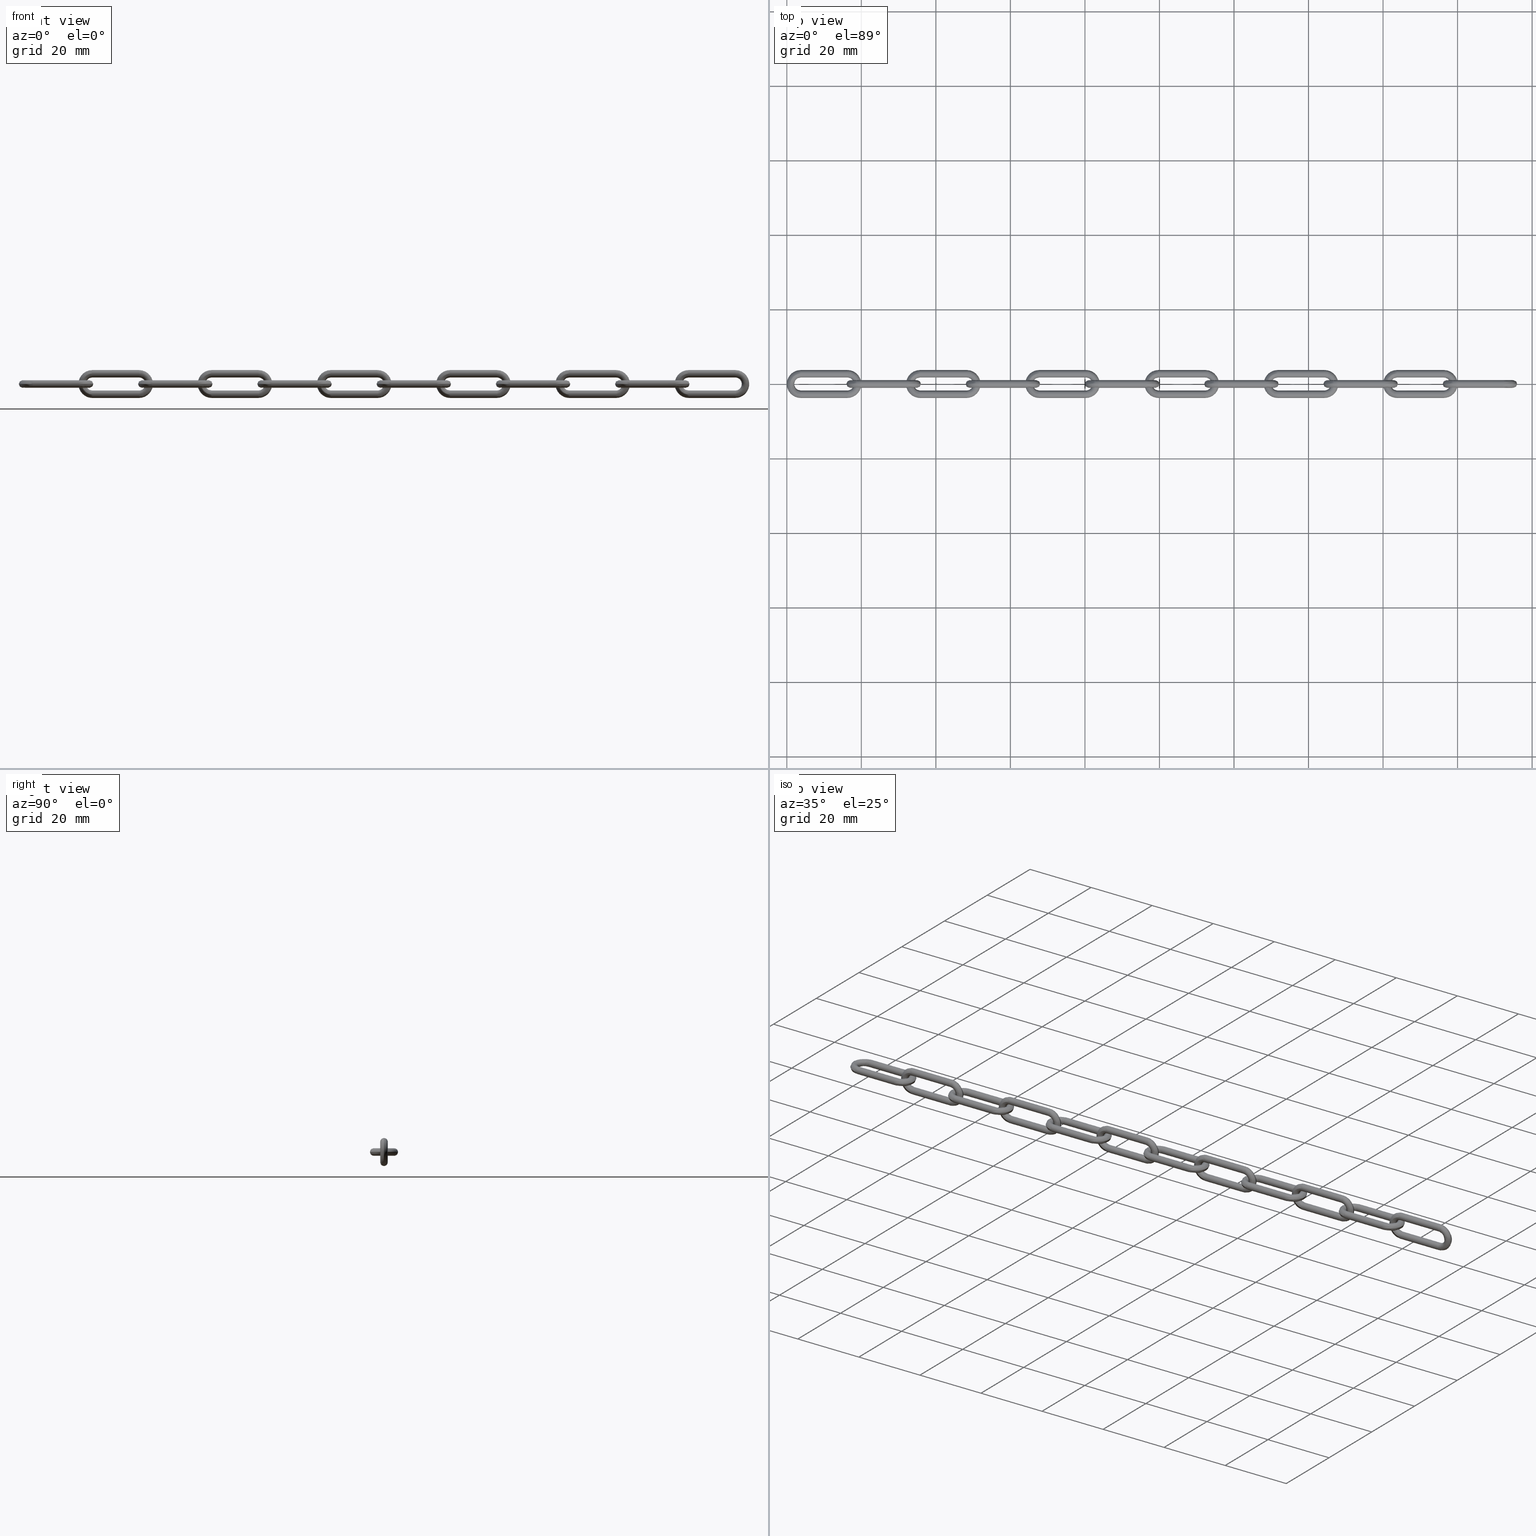
[diagram: canonical four-view strip — front | top / right | iso, engineering-drawing reading convention]
A machine part, canonical four-view strip (front | top / right | iso — engineering-drawing reading convention). The complete STEP part file that produces these views, byte-faithful:
ISO-10303-21;
HEADER;
/****************************************************************
 * Generated by software with PDE/Lib inside                    *
 * PDElib Version 4.4.1-0003, patched  Thursday August 19 11:58 *
 * International Technegroup Inc. (www.iti-oh.com)              *
 ****************************************************************/
FILE_DESCRIPTION((''),'2;1');
FILE_NAME('','2005-12-14T14:34:31',(''),(''),'','CADfix','');
FILE_SCHEMA(('AUTOMOTIVE_DESIGN'));
ENDSEC;
DATA;
#5=APPLICATION_CONTEXT('automotive design');
#6=APPLICATION_PROTOCOL_DEFINITION('Draft International Standard','automotive_design',1998,#5);
#7=PRODUCT_CONTEXT('None',#5,'mechanical');
#8=PRODUCT('chain','','None',(#7));
#9=PRODUCT_RELATED_PRODUCT_CATEGORY('part','description',(#8));
#10=PRODUCT_DEFINITION_FORMATION('None','None',#8);
#11=PRODUCT_DEFINITION_CONTEXT('part definition',#5,'design');
#12=PRODUCT_DEFINITION('None','None',#10,#11);
#18=(NAMED_UNIT(*)PLANE_ANGLE_UNIT()SI_UNIT($,.RADIAN.));
#19=DIMENSIONAL_EXPONENTS(0.0,0.0,0.0,0.0,0.0,0.0,0.0);
#20=PLANE_ANGLE_MEASURE_WITH_UNIT(PLANE_ANGLE_MEASURE(0.017453292500000),#18);
#24=(CONVERSION_BASED_UNIT('DEGREE',#20)NAMED_UNIT(#19)PLANE_ANGLE_UNIT());
#28=(NAMED_UNIT(*)SI_UNIT($,.STERADIAN.)SOLID_ANGLE_UNIT());
#32=(LENGTH_UNIT()NAMED_UNIT(*)SI_UNIT(.MILLI.,.METRE.));
#34=UNCERTAINTY_MEASURE_WITH_UNIT(LENGTH_MEASURE(0.001000000000000),#32,'DISTANCE_ACCURACY_VALUE','');
#36=(GEOMETRIC_REPRESENTATION_CONTEXT(3)GLOBAL_UNCERTAINTY_ASSIGNED_CONTEXT((#34))GLOBAL_UNIT_ASSIGNED_CONTEXT((#24,#28,#32))REPRESENTATION_CONTEXT('None','None'));
#37=AXIS2_PLACEMENT_3D('',#38,#39,#40);
#38=CARTESIAN_POINT('',(0.0,0.0,0.0));
#39=DIRECTION('',(0.0,0.0,1.0));
#40=DIRECTION('',(1.0,0.0,0.0));
#41=ADVANCED_BREP_SHAPE_REPRESENTATION('',(#37,#785,#825,#841,#857,#873,#889,#905,#921,#937,#953,#969,#985,#1001),#36);
#42=PRODUCT_DEFINITION_SHAPE('','',#12);
#43=SHAPE_DEFINITION_REPRESENTATION(#42,#41);
#44=CARTESIAN_POINT('',(16.562500000013380,-2.024625628987712,-0.688354575693753));
#45=CARTESIAN_POINT('',(16.562500000013387,-2.712980204681466,-1.413728946706041));
#46=CARTESIAN_POINT('',(16.562500000013380,-3.438354575693754,-0.725374371012288));
#47=CARTESIAN_POINT('',(16.562500000013387,-4.163728946706041,-0.037019795318534));
#48=CARTESIAN_POINT('',(16.562500000013380,-3.475374371012288,0.688354575693753));
#49=CARTESIAN_POINT('',(16.562500000013387,-2.787019795318535,1.413728946706041));
#50=CARTESIAN_POINT('',(16.562500000013380,-2.061645424306247,0.725374371012288));
#51=CARTESIAN_POINT('',(3.429687499962645,-2.024625628987712,-0.688354575693753));
#52=CARTESIAN_POINT('',(3.429687499962644,-2.712980204681466,-1.413728946706041));
#53=CARTESIAN_POINT('',(3.429687499962645,-3.438354575693754,-0.725374371012288));
#54=CARTESIAN_POINT('',(3.429687499962644,-4.163728946706041,-0.037019795318534));
#55=CARTESIAN_POINT('',(3.429687499962645,-3.475374371012288,0.688354575693753));
#56=CARTESIAN_POINT('',(3.429687499962644,-2.787019795318535,1.413728946706041));
#57=CARTESIAN_POINT('',(3.429687499962645,-2.061645424306247,0.725374371012288));
#65=(BOUNDED_SURFACE()B_SPLINE_SURFACE(2,1,((#44,#51),(#45,#52),(#46,#53),(#47,#54),(#48,#55),(#49,#56),(#50,#57)),.UNSPECIFIED.,.F.,.F.,.U.)B_SPLINE_SURFACE_WITH_KNOTS((3,2,2,3),(2,2),(1.570796326794897,3.141592653589793,4.712388980384690,6.283185307179586),(0.0,13.132812500050740),.UNSPECIFIED.)GEOMETRIC_REPRESENTATION_ITEM()RATIONAL_B_SPLINE_SURFACE(((1.0,1.0),(0.707106781186548,0.707106781186548),(1.0,1.0),(0.707106781186548,0.707106781186548),(1.0,1.0),(0.707106781186548,0.707106781186548),(1.0,1.0)))REPRESENTATION_ITEM('')SURFACE());
#66=CARTESIAN_POINT('',(16.250000000003890,-2.024625470343188,-0.688354408509139));
#67=VERTEX_POINT('',#66);
#68=CARTESIAN_POINT('',(16.250000000000000,-2.750000000000000,-1.0));
#69=VERTEX_POINT('',#68);
#70=CARTESIAN_POINT('',(16.250000000003890,-2.024625470343189,-0.688354408509139));
#71=CARTESIAN_POINT('',(16.249999999999996,-2.320365821023013,-1.0));
#72=CARTESIAN_POINT('',(16.250000000000000,-2.750000000000000,-1.0));
#80=(BOUNDED_CURVE()B_SPLINE_CURVE(2,(#70,#71,#72),.UNSPECIFIED.,.F.,.U.)B_SPLINE_CURVE_WITH_KNOTS((3,3),(0.371049457097000,0.500000000000000),.UNSPECIFIED.)CURVE()GEOMETRIC_REPRESENTATION_ITEM()RATIONAL_B_SPLINE_CURVE((0.853699666520713,0.848925041685592,1.0))REPRESENTATION_ITEM(''));
#81=EDGE_CURVE('',#67,#69,#80,.T.);
#82=ORIENTED_EDGE('',*,*,#81,.T.);
#83=CARTESIAN_POINT('',(16.250000000008139,-3.749684189282236,0.025130095485614));
#84=VERTEX_POINT('',#83);
#85=CARTESIAN_POINT('',(16.250000000000000,-2.750000000000000,-1.0));
#86=CARTESIAN_POINT('',(16.250000000000004,-3.749999999999999,-1.0));
#87=CARTESIAN_POINT('',(16.250000000000000,-3.750000000000000,0.0));
#88=CARTESIAN_POINT('',(16.250000000000004,-3.750000000000000,0.012567032165678));
#89=CARTESIAN_POINT('',(16.250000000008143,-3.749684189282236,0.025130095485614));
#97=(BOUNDED_CURVE()B_SPLINE_CURVE(2,(#85,#86,#87,#88,#89),.UNSPECIFIED.,.F.,.U.)B_SPLINE_CURVE_WITH_KNOTS((3,2,3),(0.500000000000000,0.750000000000000,0.754420108244993),.UNSPECIFIED.)CURVE()GEOMETRIC_REPRESENTATION_ITEM()RATIONAL_B_SPLINE_CURVE((1.0,0.707106781186548,1.0,0.994821521074481,0.989826157648124))REPRESENTATION_ITEM(''));
#98=EDGE_CURVE('',#69,#84,#97,.T.);
#99=ORIENTED_EDGE('',*,*,#98,.T.);
#100=CARTESIAN_POINT('',(16.250000000000000,-2.750000000000000,1.0));
#101=VERTEX_POINT('',#100);
#102=CARTESIAN_POINT('',(16.250000000008143,-3.749684189282236,0.025130095485614));
#103=CARTESIAN_POINT('',(16.250000000000000,-3.725177876098142,1.0));
#104=CARTESIAN_POINT('',(16.250000000000000,-2.750000000000000,1.0));
#112=(BOUNDED_CURVE()B_SPLINE_CURVE(2,(#102,#103,#104),.UNSPECIFIED.,.F.,.U.)B_SPLINE_CURVE_WITH_KNOTS((3,3),(0.754420108244992,1.0),.UNSPECIFIED.)CURVE()GEOMETRIC_REPRESENTATION_ITEM()RATIONAL_B_SPLINE_CURVE((0.989826157648125,0.712285260112066,1.0))REPRESENTATION_ITEM(''));
#113=EDGE_CURVE('',#84,#101,#112,.T.);
#114=ORIENTED_EDGE('',*,*,#113,.T.);
#115=CARTESIAN_POINT('',(16.250000000000000,-2.061645520639556,0.725374462429161));
#116=VERTEX_POINT('',#115);
#117=CARTESIAN_POINT('',(16.250000000000000,-2.750000000000000,1.0));
#118=CARTESIAN_POINT('',(16.249999999999996,-2.351040607969600,1.0));
#119=CARTESIAN_POINT('',(16.250000000000007,-2.061645520639556,0.725374462429161));
#127=(BOUNDED_CURVE()B_SPLINE_CURVE(2,(#117,#118,#119),.UNSPECIFIED.,.F.,.U.)B_SPLINE_CURVE_WITH_KNOTS((3,3),(0.0,0.121049486574772),.UNSPECIFIED.)CURVE()GEOMETRIC_REPRESENTATION_ITEM()RATIONAL_B_SPLINE_CURVE((1.0,0.858181704965597,0.853699664337786))REPRESENTATION_ITEM(''));
#128=EDGE_CURVE('',#101,#116,#127,.T.);
#129=ORIENTED_EDGE('',*,*,#128,.T.);
#130=CARTESIAN_POINT('',(3.750000000000000,-2.061645519479000,0.725374461327835));
#131=VERTEX_POINT('',#130);
#132=CARTESIAN_POINT('',(16.250000000000000,-2.061645520639556,0.725374462429161));
#133=CARTESIAN_POINT('',(3.750000000000000,-2.061645519479000,0.725374461327835));
#134=QUASI_UNIFORM_CURVE('',1,(#132,#133),.UNSPECIFIED.,.F.,.U.);
#135=EDGE_CURVE('',#116,#131,#134,.T.);
#136=ORIENTED_EDGE('',*,*,#135,.T.);
#137=CARTESIAN_POINT('',(3.749999999963884,-2.775130095693678,0.999684189277007));
#138=VERTEX_POINT('',#137);
#139=CARTESIAN_POINT('',(3.749999999963884,-2.775130095693679,0.999684189277007));
#140=CARTESIAN_POINT('',(3.750000000000000,-2.762567032373841,1.000000000000000));
#141=CARTESIAN_POINT('',(3.750000000000000,-2.750000000000000,1.0));
#142=CARTESIAN_POINT('',(3.750000000000000,-2.351040606115003,1.000000000000000));
#143=CARTESIAN_POINT('',(3.750000000000000,-2.061645519479000,0.725374461327835));
#151=(BOUNDED_CURVE()B_SPLINE_CURVE(2,(#139,#140,#141,#142,#143),.UNSPECIFIED.,.F.,.U.)B_SPLINE_CURVE_WITH_KNOTS((3,2,3),(0.245579891682171,0.250000000000000,0.371049487057679),.UNSPECIFIED.)CURVE()GEOMETRIC_REPRESENTATION_ITEM()RATIONAL_B_SPLINE_CURVE((0.989826157483492,0.994821520989148,1.0,0.858181704399836,0.853699664302025))REPRESENTATION_ITEM(''));
#152=EDGE_CURVE('',#138,#131,#151,.T.);
#153=ORIENTED_EDGE('',*,*,#152,.F.);
#154=CARTESIAN_POINT('',(3.750000000000000,-3.750000000000000,5.051501E-016));
#155=VERTEX_POINT('',#154);
#156=CARTESIAN_POINT('',(3.750000000000000,-3.750000000000000,5.051501E-016));
#157=CARTESIAN_POINT('',(3.750000000000000,-3.750000000000000,0.975177875692085));
#158=CARTESIAN_POINT('',(3.749999999963884,-2.775130095693679,0.999684189277007));
#166=(BOUNDED_CURVE()B_SPLINE_CURVE(2,(#156,#157,#158),.UNSPECIFIED.,.F.,.U.)B_SPLINE_CURVE_WITH_KNOTS((3,3),(0.0,0.245579891682171),.UNSPECIFIED.)CURVE()GEOMETRIC_REPRESENTATION_ITEM()RATIONAL_B_SPLINE_CURVE((1.0,0.712285260197400,0.989826157483492))REPRESENTATION_ITEM(''));
#167=EDGE_CURVE('',#155,#138,#166,.T.);
#168=ORIENTED_EDGE('',*,*,#167,.F.);
#169=CARTESIAN_POINT('',(3.749999999991843,-3.749684189282349,-0.025130095481124));
#170=VERTEX_POINT('',#169);
#171=CARTESIAN_POINT('',(3.749999999991843,-3.749684189282349,-0.025130095481124));
#172=CARTESIAN_POINT('',(3.750000000000000,-3.750000000000000,-0.012567032161184));
#173=CARTESIAN_POINT('',(3.750000000000000,-3.750000000000000,5.051501E-016));
#181=(BOUNDED_CURVE()B_SPLINE_CURVE(2,(#171,#172,#173),.UNSPECIFIED.,.F.,.U.)B_SPLINE_CURVE_WITH_KNOTS((3,3),(0.995579891756580,1.0),.UNSPECIFIED.)CURVE()GEOMETRIC_REPRESENTATION_ITEM()RATIONAL_B_SPLINE_CURVE((0.989826157651677,0.994821521076323,1.0))REPRESENTATION_ITEM(''));
#182=EDGE_CURVE('',#170,#155,#181,.T.);
#183=ORIENTED_EDGE('',*,*,#182,.F.);
#184=CARTESIAN_POINT('',(3.749999999999998,-2.024625538672165,-0.688354480521000));
#185=VERTEX_POINT('',#184);
#186=CARTESIAN_POINT('',(3.749999999999998,-2.024625538672165,-0.688354480521000));
#187=CARTESIAN_POINT('',(3.750000000000000,-2.320365938609645,-1.000000000000000));
#188=CARTESIAN_POINT('',(3.750000000000000,-2.750000000000000,-1.000000000000000));
#189=CARTESIAN_POINT('',(3.750000000000000,-3.725177876106901,-1.000000000000000));
#190=CARTESIAN_POINT('',(3.749999999991843,-3.749684189282349,-0.025130095481124));
#198=(BOUNDED_CURVE()B_SPLINE_CURVE(2,(#186,#187,#188,#189,#190),.UNSPECIFIED.,.F.,.U.)B_SPLINE_CURVE_WITH_KNOTS((3,2,3),(0.621049487057680,0.750000000000000,0.995579891756579),.UNSPECIFIED.)CURVE()GEOMETRIC_REPRESENTATION_ITEM()RATIONAL_B_SPLINE_CURVE((0.853699664302025,0.848925076786712,1.0,0.712285260110225,0.989826157651676))REPRESENTATION_ITEM(''));
#199=EDGE_CURVE('',#185,#170,#198,.T.);
#200=ORIENTED_EDGE('',*,*,#199,.F.);
#201=CARTESIAN_POINT('',(16.250000000003890,-2.024625470343188,-0.688354408509139));
#202=CARTESIAN_POINT('',(3.749999999999998,-2.024625538672165,-0.688354480521000));
#203=QUASI_UNIFORM_CURVE('',1,(#201,#202),.UNSPECIFIED.,.F.,.U.);
#204=EDGE_CURVE('',#67,#185,#203,.T.);
#205=ORIENTED_EDGE('',*,*,#204,.F.);
#206=EDGE_LOOP('',(#82,#99,#114,#129,#136,#153,#168,#183,#200,#205));
#207=FACE_OUTER_BOUND('',#206,.T.);
#208=ADVANCED_FACE('',(#207),#65,.T.);
#209=CARTESIAN_POINT('',(16.562500000013380,-2.061645424306247,0.725374371012288));
#210=CARTESIAN_POINT('',(16.562500000013387,-1.336271053293959,0.037019795318534));
#211=CARTESIAN_POINT('',(16.562500000013380,-2.024625628987712,-0.688354575693753));
#212=CARTESIAN_POINT('',(3.429687499962645,-2.061645424306247,0.725374371012288));
#213=CARTESIAN_POINT('',(3.429687499962644,-1.336271053293959,0.037019795318534));
#214=CARTESIAN_POINT('',(3.429687499962645,-2.024625628987712,-0.688354575693753));
#222=(BOUNDED_SURFACE()B_SPLINE_SURFACE(2,1,((#209,#212),(#210,#213),(#211,#214)),.UNSPECIFIED.,.F.,.F.,.U.)B_SPLINE_SURFACE_WITH_KNOTS((3,3),(2,2),(0.0,1.570796326794897),(0.0,13.132812500050740),.UNSPECIFIED.)GEOMETRIC_REPRESENTATION_ITEM()RATIONAL_B_SPLINE_SURFACE(((1.0,1.0),(0.707106781186548,0.707106781186548),(1.0,1.0)))REPRESENTATION_ITEM('')SURFACE());
#223=CARTESIAN_POINT('',(16.250000000012172,-1.750315810718006,-0.025130095495338));
#224=VERTEX_POINT('',#223);
#225=CARTESIAN_POINT('',(16.250000000012172,-1.750315810718007,-0.025130095495338));
#226=CARTESIAN_POINT('',(16.250000000007368,-1.759977443935625,-0.409473320617092));
#227=CARTESIAN_POINT('',(16.250000000003890,-2.024625470343189,-0.688354408509139));
#235=(BOUNDED_CURVE()B_SPLINE_CURVE(2,(#225,#226,#227),.UNSPECIFIED.,.F.,.U.)B_SPLINE_CURVE_WITH_KNOTS((3,3),(0.254420108248396,0.371049457097000),.UNSPECIFIED.)CURVE()GEOMETRIC_REPRESENTATION_ITEM()RATIONAL_B_SPLINE_CURVE((0.989826157640431,0.858018077075489,0.853699666520713))REPRESENTATION_ITEM(''));
#236=EDGE_CURVE('',#224,#67,#235,.T.);
#237=ORIENTED_EDGE('',*,*,#236,.T.);
#238=ORIENTED_EDGE('',*,*,#204,.T.);
#239=CARTESIAN_POINT('',(3.750000000000000,-1.750000000000000,5.051501E-016));
#240=VERTEX_POINT('',#239);
#241=CARTESIAN_POINT('',(3.750000000000000,-1.750000000000000,5.051501E-016));
#242=CARTESIAN_POINT('',(3.750000000000000,-1.750000000000000,-0.398959393885003));
#243=CARTESIAN_POINT('',(3.749999999999998,-2.024625538672165,-0.688354480521000));
#251=(BOUNDED_CURVE()B_SPLINE_CURVE(2,(#241,#242,#243),.UNSPECIFIED.,.F.,.U.)B_SPLINE_CURVE_WITH_KNOTS((3,3),(0.500000000000000,0.621049487057681),.UNSPECIFIED.)CURVE()GEOMETRIC_REPRESENTATION_ITEM()RATIONAL_B_SPLINE_CURVE((1.0,0.858181704399834,0.853699664302025))REPRESENTATION_ITEM(''));
#252=EDGE_CURVE('',#240,#185,#251,.T.);
#253=ORIENTED_EDGE('',*,*,#252,.F.);
#254=CARTESIAN_POINT('',(3.750000000000000,-2.061645519479000,0.725374461327835));
#255=CARTESIAN_POINT('',(3.750000000000000,-1.750000000000000,0.429634061390355));
#256=CARTESIAN_POINT('',(3.750000000000000,-1.750000000000000,5.051501E-016));
#264=(BOUNDED_CURVE()B_SPLINE_CURVE(2,(#254,#255,#256),.UNSPECIFIED.,.F.,.U.)B_SPLINE_CURVE_WITH_KNOTS((3,3),(0.371049487057680,0.500000000000000),.UNSPECIFIED.)CURVE()GEOMETRIC_REPRESENTATION_ITEM()RATIONAL_B_SPLINE_CURVE((0.853699664302025,0.848925076786712,1.0))REPRESENTATION_ITEM(''));
#265=EDGE_CURVE('',#131,#240,#264,.T.);
#266=ORIENTED_EDGE('',*,*,#265,.F.);
#267=ORIENTED_EDGE('',*,*,#135,.F.);
#268=CARTESIAN_POINT('',(16.250000000000007,-2.061645520639556,0.725374462429161));
#269=CARTESIAN_POINT('',(16.249999999999996,-1.750000000000000,0.429634063285620));
#270=CARTESIAN_POINT('',(16.250000000000000,-1.750000000000000,0.0));
#271=CARTESIAN_POINT('',(16.250000000000000,-1.750000000000000,-0.012567032175405));
#272=CARTESIAN_POINT('',(16.250000000012172,-1.750315810718007,-0.025130095495338));
#280=(BOUNDED_CURVE()B_SPLINE_CURVE(2,(#268,#269,#270,#271,#272),.UNSPECIFIED.,.F.,.U.)B_SPLINE_CURVE_WITH_KNOTS((3,2,3),(0.121049486574772,0.250000000000000,0.254420108248396),.UNSPECIFIED.)CURVE()GEOMETRIC_REPRESENTATION_ITEM()RATIONAL_B_SPLINE_CURVE((0.853699664337786,0.848925076220951,1.0,0.994821521070494,0.989826157640431))REPRESENTATION_ITEM(''));
#281=EDGE_CURVE('',#116,#224,#280,.T.);
#282=ORIENTED_EDGE('',*,*,#281,.T.);
#283=EDGE_LOOP('',(#237,#238,#253,#266,#267,#282));
#284=FACE_OUTER_BOUND('',#283,.T.);
#285=ADVANCED_FACE('',(#284),#222,.T.);
#286=CARTESIAN_POINT('',(16.562500000024418,3.524709102225163,-0.632317805323781));
#287=CARTESIAN_POINT('',(16.562500000024418,3.506612438298899,-0.654489646991923));
#288=CARTESIAN_POINT('',(16.562500000024411,3.487277336810123,-0.675590207615661));
#289=CARTESIAN_POINT('',(16.562500000024418,2.811687129194463,-1.412867544425785));
#290=CARTESIAN_POINT('',(16.562500000024411,2.074409792384339,-0.737277336810124));
#291=CARTESIAN_POINT('',(3.429687499846156,3.524709102225163,-0.632317805323781));
#292=CARTESIAN_POINT('',(3.429687499846155,3.506612438298899,-0.654489646991923));
#293=CARTESIAN_POINT('',(3.429687499846155,3.487277336810123,-0.675590207615661));
#294=CARTESIAN_POINT('',(3.429687499846156,2.811687129194463,-1.412867544425785));
#295=CARTESIAN_POINT('',(3.429687499846155,2.074409792384339,-0.737277336810124));
#303=(BOUNDED_SURFACE()B_SPLINE_SURFACE(2,1,((#286,#291),(#287,#292),(#288,#293),(#289,#294),(#290,#295)),.UNSPECIFIED.,.F.,.F.,.U.)B_SPLINE_SURFACE_WITH_KNOTS((3,2,3),(2,2),(4.649557127312894,4.712388980384690,6.283185307179586),(0.0,13.132812500178259),.UNSPECIFIED.)GEOMETRIC_REPRESENTATION_ITEM()RATIONAL_B_SPLINE_SURFACE(((0.977505800795127,0.977505800795127),(0.988284271247462,0.988284271247462),(1.0,1.0),(0.707106781186548,0.707106781186548),(1.0,1.0)))REPRESENTATION_ITEM('')SURFACE());
#304=CARTESIAN_POINT('',(3.750000000000000,2.074409832917328,-0.737277373951761));
#305=VERTEX_POINT('',#304);
#306=CARTESIAN_POINT('',(3.749999999999742,3.524709101645843,-0.632317806026028));
#307=VERTEX_POINT('',#306);
#308=CARTESIAN_POINT('',(3.750000000000000,2.074409832917328,-0.737277373951761));
#309=CARTESIAN_POINT('',(3.750000000000000,2.361121331437515,-0.999999999999999));
#310=CARTESIAN_POINT('',(3.750000000000000,2.750000000000000,-1.000000000000000));
#311=CARTESIAN_POINT('',(3.750000000000000,3.224606781758720,-0.999999999999999));
#312=CARTESIAN_POINT('',(3.749999999999742,3.524709101645844,-0.632317806026028));
#320=(BOUNDED_CURVE()B_SPLINE_CURVE(2,(#308,#309,#310,#311,#312),.UNSPECIFIED.,.F.,.U.)B_SPLINE_CURVE_WITH_KNOTS((3,2,3),(0.631584807514478,0.750000000000000,0.890231021493468),.UNSPECIFIED.)CURVE()GEOMETRIC_REPRESENTATION_ITEM()RATIONAL_B_SPLINE_CURVE((0.853959782886767,0.861267972466004,1.0,0.835709138949118,0.855727680035890))REPRESENTATION_ITEM(''));
#321=EDGE_CURVE('',#305,#307,#320,.T.);
#322=ORIENTED_EDGE('',*,*,#321,.T.);
#323=CARTESIAN_POINT('',(16.250000000000000,3.524709205957899,-0.632317678231484));
#324=VERTEX_POINT('',#323);
#325=CARTESIAN_POINT('',(16.250000000000000,3.524709205957899,-0.632317678231484));
#326=CARTESIAN_POINT('',(3.749999999999742,3.524709101645843,-0.632317806026028));
#327=QUASI_UNIFORM_CURVE('',1,(#325,#326),.UNSPECIFIED.,.F.,.U.);
#328=EDGE_CURVE('',#324,#307,#327,.T.);
#329=ORIENTED_EDGE('',*,*,#328,.F.);
#330=CARTESIAN_POINT('',(16.250000000000000,2.750000000000000,-1.0));
#331=VERTEX_POINT('',#330);
#332=CARTESIAN_POINT('',(16.249999999999996,3.524709205957900,-0.632317678231484));
#333=CARTESIAN_POINT('',(16.250000000000000,3.224606983886174,-1.000000000000000));
#334=CARTESIAN_POINT('',(16.250000000000000,2.750000000000000,-1.0));
#342=(BOUNDED_CURVE()B_SPLINE_CURVE(2,(#332,#333,#334),.UNSPECIFIED.,.F.,.U.)B_SPLINE_CURVE_WITH_KNOTS((3,3),(0.359768928596185,0.500000000000000),.UNSPECIFIED.)CURVE()GEOMETRIC_REPRESENTATION_ITEM()RATIONAL_B_SPLINE_CURVE((0.855727694285718,0.835709080475510,1.0))REPRESENTATION_ITEM(''));
#343=EDGE_CURVE('',#324,#331,#342,.T.);
#344=ORIENTED_EDGE('',*,*,#343,.T.);
#345=CARTESIAN_POINT('',(16.250000000005439,2.074409957361920,-0.737277487977934));
#346=VERTEX_POINT('',#345);
#347=CARTESIAN_POINT('',(16.250000000000000,2.750000000000000,-1.0));
#348=CARTESIAN_POINT('',(16.249999999999996,2.361121525752541,-1.000000000000000));
#349=CARTESIAN_POINT('',(16.250000000005432,2.074409957361920,-0.737277487977934));
#357=(BOUNDED_CURVE()B_SPLINE_CURVE(2,(#347,#348,#349),.UNSPECIFIED.,.F.,.U.)B_SPLINE_CURVE_WITH_KNOTS((3,3),(0.500000000000000,0.618415141524513),.UNSPECIFIED.)CURVE()GEOMETRIC_REPRESENTATION_ITEM()RATIONAL_B_SPLINE_CURVE((1.0,0.861268032170540,0.853959789177077))REPRESENTATION_ITEM(''));
#358=EDGE_CURVE('',#331,#346,#357,.T.);
#359=ORIENTED_EDGE('',*,*,#358,.T.);
#360=CARTESIAN_POINT('',(16.250000000005439,2.074409957361920,-0.737277487977934));
#361=CARTESIAN_POINT('',(3.750000000000000,2.074409832917328,-0.737277373951761));
#362=QUASI_UNIFORM_CURVE('',1,(#360,#361),.UNSPECIFIED.,.F.,.U.);
#363=EDGE_CURVE('',#346,#305,#362,.T.);
#364=ORIENTED_EDGE('',*,*,#363,.T.);
#365=EDGE_LOOP('',(#322,#329,#344,#359,#364));
#366=FACE_OUTER_BOUND('',#365,.T.);
#367=ADVANCED_FACE('',(#366),#303,.T.);
#368=CARTESIAN_POINT('',(16.562500000024411,2.074409792384339,-0.737277336810124));
#369=CARTESIAN_POINT('',(16.562500000024418,1.337132455574216,-0.061687129194463));
#370=CARTESIAN_POINT('',(16.562500000024411,2.012722663189877,0.675590207615660));
#371=CARTESIAN_POINT('',(16.562500000024418,2.688312870805538,1.412867544425783));
#372=CARTESIAN_POINT('',(16.562500000024411,3.425590207615661,0.737277336810123));
#373=CARTESIAN_POINT('',(16.562500000024421,4.121840596793184,0.099281400284993));
#374=CARTESIAN_POINT('',(16.562500000024418,3.524709102225163,-0.632317805323781));
#375=CARTESIAN_POINT('',(3.429687499846155,2.074409792384339,-0.737277336810124));
#376=CARTESIAN_POINT('',(3.429687499846156,1.337132455574216,-0.061687129194463));
#377=CARTESIAN_POINT('',(3.429687499846155,2.012722663189877,0.675590207615660));
#378=CARTESIAN_POINT('',(3.429687499846156,2.688312870805538,1.412867544425783));
#379=CARTESIAN_POINT('',(3.429687499846155,3.425590207615661,0.737277336810123));
#380=CARTESIAN_POINT('',(3.429687499846155,4.121840596793184,0.099281400284993));
#381=CARTESIAN_POINT('',(3.429687499846156,3.524709102225163,-0.632317805323781));
#389=(BOUNDED_SURFACE()B_SPLINE_SURFACE(2,1,((#368,#375),(#369,#376),(#370,#377),(#371,#378),(#372,#379),(#373,#380),(#374,#381)),.UNSPECIFIED.,.F.,.F.,.U.)B_SPLINE_SURFACE_WITH_KNOTS((3,2,2,3),(2,2),(0.0,1.570796326794897,3.141592653589793,4.649557127312894),(0.0,13.132812500178259),.UNSPECIFIED.)GEOMETRIC_REPRESENTATION_ITEM()RATIONAL_B_SPLINE_SURFACE(((1.0,1.0),(0.707106781186548,0.707106781186548),(1.0,1.0),(0.707106781186548,0.707106781186548),(1.0,1.0),(0.718822509939086,0.718822509939086),(0.977505800795127,0.977505800795127)))REPRESENTATION_ITEM('')SURFACE());
#390=CARTESIAN_POINT('',(3.749999999999320,3.749684189282265,-0.025130095484523));
#391=VERTEX_POINT('',#390);
#392=CARTESIAN_POINT('',(3.749999999999742,3.524709101645844,-0.632317806026028));
#393=CARTESIAN_POINT('',(3.749999999999558,3.741084807584531,-0.367216575499000));
#394=CARTESIAN_POINT('',(3.749999999999320,3.749684189282265,-0.025130095484523));
#402=(BOUNDED_CURVE()B_SPLINE_CURVE(2,(#392,#393,#394),.UNSPECIFIED.,.F.,.U.)B_SPLINE_CURVE_WITH_KNOTS((3,3),(0.890231021493469,0.995579891755389),.UNSPECIFIED.)CURVE()GEOMETRIC_REPRESENTATION_ITEM()RATIONAL_B_SPLINE_CURVE((0.855727680035890,0.870766654046939,0.989826157648986))REPRESENTATION_ITEM(''));
#403=EDGE_CURVE('',#307,#391,#402,.T.);
#404=ORIENTED_EDGE('',*,*,#403,.T.);
#405=CARTESIAN_POINT('',(3.750000000000000,3.750000000000000,5.051501E-016));
#406=VERTEX_POINT('',#405);
#407=CARTESIAN_POINT('',(3.749999999999320,3.749684189282265,-0.025130095484523));
#408=CARTESIAN_POINT('',(3.750000000000000,3.750000000000000,-0.012567032164585));
#409=CARTESIAN_POINT('',(3.750000000000000,3.750000000000000,5.051501E-016));
#417=(BOUNDED_CURVE()B_SPLINE_CURVE(2,(#407,#408,#409),.UNSPECIFIED.,.F.,.U.)B_SPLINE_CURVE_WITH_KNOTS((3,3),(0.995579891755390,1.0),.UNSPECIFIED.)CURVE()GEOMETRIC_REPRESENTATION_ITEM()RATIONAL_B_SPLINE_CURVE((0.989826157648988,0.994821521074929,1.0))REPRESENTATION_ITEM(''));
#418=EDGE_CURVE('',#391,#406,#417,.T.);
#419=ORIENTED_EDGE('',*,*,#418,.T.);
#420=CARTESIAN_POINT('',(3.749999999850504,2.775130096232384,0.999684189263465));
#421=VERTEX_POINT('',#420);
#422=CARTESIAN_POINT('',(3.750000000000000,3.750000000000000,5.051501E-016));
#423=CARTESIAN_POINT('',(3.750000000000000,3.750000000000000,0.975177874640757));
#424=CARTESIAN_POINT('',(3.749999999850505,2.775130096232384,0.999684189263465));
#432=(BOUNDED_CURVE()B_SPLINE_CURVE(2,(#422,#423,#424),.UNSPECIFIED.,.F.,.U.)B_SPLINE_CURVE_WITH_KNOTS((3,3),(0.0,0.245579891493589),.UNSPECIFIED.)CURVE()GEOMETRIC_REPRESENTATION_ITEM()RATIONAL_B_SPLINE_CURVE((1.0,0.712285260418338,0.989826157057241))REPRESENTATION_ITEM(''));
#433=EDGE_CURVE('',#406,#421,#432,.T.);
#434=ORIENTED_EDGE('',*,*,#433,.T.);
#435=CARTESIAN_POINT('',(3.750000000000000,1.750000000000000,5.051501E-016));
#436=VERTEX_POINT('',#435);
#437=CARTESIAN_POINT('',(3.749999999850505,2.775130096232384,0.999684189263465));
#438=CARTESIAN_POINT('',(3.750000000000000,2.762567032912799,1.000000000000001));
#439=CARTESIAN_POINT('',(3.750000000000000,2.750000000000000,1.0));
#440=CARTESIAN_POINT('',(3.749999999999999,1.750000000000000,1.000000000000000));
#441=CARTESIAN_POINT('',(3.750000000000000,1.750000000000000,5.051501E-016));
#449=(BOUNDED_CURVE()B_SPLINE_CURVE(2,(#437,#438,#439,#440,#441),.UNSPECIFIED.,.F.,.U.)B_SPLINE_CURVE_WITH_KNOTS((3,2,3),(0.245579891493589,0.250000000000000,0.500000000000000),.UNSPECIFIED.)CURVE()GEOMETRIC_REPRESENTATION_ITEM()RATIONAL_B_SPLINE_CURVE((0.989826157057241,0.994821520768210,1.0,0.707106781186548,1.0))REPRESENTATION_ITEM(''));
#450=EDGE_CURVE('',#421,#436,#449,.T.);
#451=ORIENTED_EDGE('',*,*,#450,.T.);
#452=CARTESIAN_POINT('',(3.750000000000000,1.750000000000000,5.051501E-016));
#453=CARTESIAN_POINT('',(3.750000000000000,1.750000000000000,-0.440010596512388));
#454=CARTESIAN_POINT('',(3.750000000000000,2.074409832917328,-0.737277373951761));
#462=(BOUNDED_CURVE()B_SPLINE_CURVE(2,(#452,#453,#454),.UNSPECIFIED.,.F.,.U.)B_SPLINE_CURVE_WITH_KNOTS((3,3),(0.500000000000000,0.631584807514478),.UNSPECIFIED.)CURVE()GEOMETRIC_REPRESENTATION_ITEM()RATIONAL_B_SPLINE_CURVE((1.0,0.845838808720544,0.853959782886767))REPRESENTATION_ITEM(''));
#463=EDGE_CURVE('',#436,#305,#462,.T.);
#464=ORIENTED_EDGE('',*,*,#463,.T.);
#465=ORIENTED_EDGE('',*,*,#363,.F.);
#466=CARTESIAN_POINT('',(16.250000000020169,1.750315810717889,-0.025130095490600));
#467=VERTEX_POINT('',#466);
#468=CARTESIAN_POINT('',(16.250000000005432,2.074409957361920,-0.737277487977934));
#469=CARTESIAN_POINT('',(16.250000000011376,1.760998442391274,-0.450089004528808));
#470=CARTESIAN_POINT('',(16.250000000020176,1.750315810717889,-0.025130095490600));
#478=(BOUNDED_CURVE()B_SPLINE_CURVE(2,(#468,#469,#470),.UNSPECIFIED.,.F.,.U.)B_SPLINE_CURVE_WITH_KNOTS((3,3),(0.618415141524513,0.745579891753263),.UNSPECIFIED.)CURVE()GEOMETRIC_REPRESENTATION_ITEM()RATIONAL_B_SPLINE_CURVE((0.853959789177077,0.846111545422859,0.989826157644180))REPRESENTATION_ITEM(''));
#479=EDGE_CURVE('',#346,#467,#478,.T.);
#480=ORIENTED_EDGE('',*,*,#479,.T.);
#481=CARTESIAN_POINT('',(16.250000000000000,2.750000000000000,1.000000000000000));
#482=VERTEX_POINT('',#481);
#483=CARTESIAN_POINT('',(16.250000000020172,1.750315810717889,-0.025130095490600));
#484=CARTESIAN_POINT('',(16.250000000000004,1.750000000000000,-0.012567032170664));
#485=CARTESIAN_POINT('',(16.250000000000000,1.750000000000000,-5.051501E-016));
#486=CARTESIAN_POINT('',(16.250000000000004,1.750000000000000,1.000000000000000));
#487=CARTESIAN_POINT('',(16.250000000000000,2.750000000000000,1.000000000000000));
#495=(BOUNDED_CURVE()B_SPLINE_CURVE(2,(#483,#484,#485,#486,#487),.UNSPECIFIED.,.F.,.U.)B_SPLINE_CURVE_WITH_KNOTS((3,2,3),(0.745579891753263,0.750000000000000,1.0),.UNSPECIFIED.)CURVE()GEOMETRIC_REPRESENTATION_ITEM()RATIONAL_B_SPLINE_CURVE((0.989826157644180,0.994821521072437,1.0,0.707106781186548,1.0))REPRESENTATION_ITEM(''));
#496=EDGE_CURVE('',#467,#482,#495,.T.);
#497=ORIENTED_EDGE('',*,*,#496,.T.);
#498=CARTESIAN_POINT('',(16.250000000000679,3.749684189282289,0.025130095483558));
#499=VERTEX_POINT('',#498);
#500=CARTESIAN_POINT('',(16.250000000000000,2.750000000000000,1.000000000000000));
#501=CARTESIAN_POINT('',(16.250000000000004,3.725177876102156,1.000000000000000));
#502=CARTESIAN_POINT('',(16.250000000000679,3.749684189282289,0.025130095483558));
#510=(BOUNDED_CURVE()B_SPLINE_CURVE(2,(#500,#501,#502),.UNSPECIFIED.,.F.,.U.)B_SPLINE_CURVE_WITH_KNOTS((3,3),(0.0,0.245579891755728),.UNSPECIFIED.)CURVE()GEOMETRIC_REPRESENTATION_ITEM()RATIONAL_B_SPLINE_CURVE((1.0,0.712285260111223,0.989826157649752))REPRESENTATION_ITEM(''));
#511=EDGE_CURVE('',#482,#499,#510,.T.);
#512=ORIENTED_EDGE('',*,*,#511,.T.);
#513=CARTESIAN_POINT('',(16.250000000000679,3.749684189282289,0.025130095483558));
#514=CARTESIAN_POINT('',(16.249999999999996,3.750000000000000,0.012567032163618));
#515=CARTESIAN_POINT('',(16.250000000000000,3.750000000000000,-5.051501E-016));
#516=CARTESIAN_POINT('',(16.249999999999996,3.750000000000000,-0.356293589990472));
#517=CARTESIAN_POINT('',(16.249999999999996,3.524709205957900,-0.632317678231484));
#525=(BOUNDED_CURVE()B_SPLINE_CURVE(2,(#513,#514,#515,#516,#517),.UNSPECIFIED.,.F.,.U.)B_SPLINE_CURVE_WITH_KNOTS((3,2,3),(0.245579891755728,0.250000000000000,0.359768928596185),.UNSPECIFIED.)CURVE()GEOMETRIC_REPRESENTATION_ITEM()RATIONAL_B_SPLINE_CURVE((0.989826157649752,0.994821521075325,1.0,0.871397700711037,0.855727694285718))REPRESENTATION_ITEM(''));
#526=EDGE_CURVE('',#499,#324,#525,.T.);
#527=ORIENTED_EDGE('',*,*,#526,.T.);
#528=ORIENTED_EDGE('',*,*,#328,.T.);
#529=EDGE_LOOP('',(#404,#419,#434,#451,#464,#465,#480,#497,#512,#527,#528));
#530=FACE_OUTER_BOUND('',#529,.T.);
#531=ADVANCED_FACE('',(#530),#389,.T.);
#532=CARTESIAN_POINT('',(16.001866426021223,1.732638209987701,-0.025130095443337));
#533=CARTESIAN_POINT('',(17.987676827804549,2.017028932412214,-0.025130095443337));
#534=CARTESIAN_POINT('',(18.000281260981112,0.010997486223929,-0.025130095443337));
#535=CARTESIAN_POINT('',(18.013037560621378,-2.019203940284724,-0.025130095443337));
#536=CARTESIAN_POINT('',(16.003096927308917,-1.732813985960569,-0.025130095443337));
#537=CARTESIAN_POINT('',(16.005428994763744,1.707761920052380,0.974554093839962));
#538=CARTESIAN_POINT('',(17.962728196097604,1.988069513047352,0.974554093839962));
#539=CARTESIAN_POINT('',(17.975151661584334,0.010839590216390,0.974554093839962));
#540=CARTESIAN_POINT('',(17.987724813117563,-1.990213293323625,0.974554093839962));
#541=CARTESIAN_POINT('',(16.006641829174047,-1.707935172328126,0.974554093839962));
#542=CARTESIAN_POINT('',(15.863708735357891,2.697349635405064,0.999684189283300));
#543=CARTESIAN_POINT('',(18.955193693012060,3.140085578213220,0.999684189283300));
#544=CARTESIAN_POINT('',(18.974816117957609,0.017120749897750,0.999684189283300));
#545=CARTESIAN_POINT('',(18.994674966726755,-3.143471603442322,0.999684189283300));
#546=CARTESIAN_POINT('',(15.865624364472257,-2.697623281255421,0.999684189283300));
#547=CARTESIAN_POINT('',(15.721988475952028,3.686937350757748,1.024814284726638));
#548=CARTESIAN_POINT('',(19.947659189926505,4.292101643379090,1.024814284726638));
#549=CARTESIAN_POINT('',(19.974480574330880,0.023401909579110,1.024814284726638));
#550=CARTESIAN_POINT('',(20.001625120335955,-4.296729913561023,1.024814284726638));
#551=CARTESIAN_POINT('',(15.724606899770452,-3.687311390182716,1.024814284726638));
#552=CARTESIAN_POINT('',(15.718425907209522,3.711813640693069,0.025130095443338));
#553=CARTESIAN_POINT('',(19.972607821633439,4.321061062743953,0.025130095443338));
#554=CARTESIAN_POINT('',(19.999610173727650,0.023559805586649,0.025130095443338));
#555=CARTESIAN_POINT('',(20.026937867839777,-4.325720560522122,0.025130095443338));
#556=CARTESIAN_POINT('',(15.721061997905329,-3.712190203815159,0.025130095443338));
#564=(BOUNDED_SURFACE()B_SPLINE_SURFACE(2,2,((#532,#537,#542,#547,#552),(#533,#538,#543,#548,#553),(#534,#539,#544,#549,#554),(#535,#540,#545,#550,#555),(#536,#541,#546,#551,#556)),.UNSPECIFIED.,.F.,.F.,.U.)B_SPLINE_SURFACE_WITH_KNOTS((3,2,3),(3,2,3),(0.0,6.818902798998225,13.691338380777520),(0.0,1.656854249492380,3.313708498984760),.UNSPECIFIED.)GEOMETRIC_REPRESENTATION_ITEM()RATIONAL_B_SPLINE_SURFACE(((0.990444899367860,0.700350304734641,0.990444899367860,0.700350304734641,0.990444899367860),(0.654292547854581,0.462654697467798,0.654292547854581,0.462654697467798,0.654292547854581),(1.0,0.707106781186548,1.0,0.707106781186548,1.0),(0.651578521494766,0.460735591024454,0.651578521494766,0.460735591024454,0.651578521494766),(0.995764949495310,0.704112148256014,0.995764949495310,0.704112148256014,0.995764949495310)))REPRESENTATION_ITEM('')SURFACE());
#565=ORIENTED_EDGE('',*,*,#281,.F.);
#566=ORIENTED_EDGE('',*,*,#128,.F.);
#567=ORIENTED_EDGE('',*,*,#113,.F.);
#568=CARTESIAN_POINT('',(16.250000000000682,3.749684189282289,0.025130095483558));
#569=CARTESIAN_POINT('',(19.976197935653772,3.749684189281946,0.025130095443338));
#570=CARTESIAN_POINT('',(19.999610173727650,0.023559805586649,0.025130095443338));
#571=CARTESIAN_POINT('',(20.023318476946105,-3.749684189266918,0.025130095443338));
#572=CARTESIAN_POINT('',(16.250000000008139,-3.749684189282236,0.025130095485614));
#580=(BOUNDED_CURVE()B_SPLINE_CURVE(2,(#568,#569,#570,#571,#572),.UNSPECIFIED.,.F.,.U.)B_SPLINE_CURVE_WITH_KNOTS((3,2,3),(-3.792515020814185,-2.0,-0.192000658025645),.UNSPECIFIED.)CURVE()GEOMETRIC_REPRESENTATION_ITEM()RATIONAL_B_SPLINE_CURVE((0.934811369271366,0.685815180528063,1.0,0.683101151026573,0.939155212469533))REPRESENTATION_ITEM(''));
#581=EDGE_CURVE('',#499,#84,#580,.T.);
#582=ORIENTED_EDGE('',*,*,#581,.F.);
#583=ORIENTED_EDGE('',*,*,#511,.F.);
#584=ORIENTED_EDGE('',*,*,#496,.F.);
#585=CARTESIAN_POINT('',(16.250000000020172,1.750315810717888,-0.025130095490600));
#586=CARTESIAN_POINT('',(17.989352657825364,1.750315810676610,-0.025130095443337));
#587=CARTESIAN_POINT('',(18.000281260981112,0.010997486223929,-0.025130095443337));
#588=CARTESIAN_POINT('',(18.011348064443307,-1.750315810692199,-0.025130095443337));
#589=CARTESIAN_POINT('',(16.250000000012168,-1.750315810718007,-0.025130095495338));
#597=(BOUNDED_CURVE()B_SPLINE_CURVE(2,(#585,#586,#587,#588,#589),.UNSPECIFIED.,.F.,.U.)B_SPLINE_CURVE_WITH_KNOTS((3,2,3),(-3.792515020786296,-2.0,-0.192000658037463),.UNSPECIFIED.)CURVE()GEOMETRIC_REPRESENTATION_ITEM()RATIONAL_B_SPLINE_CURVE((0.934811369263618,0.685815180532951,1.0,0.683101151028644,0.939155212466185))REPRESENTATION_ITEM(''));
#598=EDGE_CURVE('',#467,#224,#597,.T.);
#599=ORIENTED_EDGE('',*,*,#598,.T.);
#600=EDGE_LOOP('',(#565,#566,#567,#582,#583,#584,#599));
#601=FACE_OUTER_BOUND('',#600,.T.);
#602=ADVANCED_FACE('',(#601),#564,.T.);
#603=CARTESIAN_POINT('',(15.718476030375331,3.711463646490781,0.039195041272416));
#604=CARTESIAN_POINT('',(19.972256809626625,4.320653621405003,0.039195041272416));
#605=CARTESIAN_POINT('',(19.999256615615977,0.023557584086283,0.039195041272416));
#606=CARTESIAN_POINT('',(20.026581732946124,-4.325312679829970,0.039195041272416));
#607=CARTESIAN_POINT('',(15.721111872508958,-3.711840174105993,0.039195041272416));
#608=CARTESIAN_POINT('',(15.718451042031928,3.711638132183667,0.032183119925324));
#609=CARTESIAN_POINT('',(19.972431802734569,4.320856746725001,0.032183119925324));
#610=CARTESIAN_POINT('',(19.999432878056009,0.023558691590430,0.032183119925324));
#611=CARTESIAN_POINT('',(20.026759280011973,-4.325516024184590,0.032183119925324));
#612=CARTESIAN_POINT('',(15.721087008083453,-3.712014677500435,0.032183119925324));
#613=CARTESIAN_POINT('',(15.714863338467008,3.736689930628391,-0.974554093839961));
#614=CARTESIAN_POINT('',(19.997556453340383,4.350020482108815,-0.974554093839961));
#615=CARTESIAN_POINT('',(20.024739773124413,0.023717701594188,-0.974554093839961));
#616=CARTESIAN_POINT('',(20.052250615343581,-4.354711207483220,-0.974554093839961));
#617=CARTESIAN_POINT('',(15.717517096040185,-3.737069017447602,-0.974554093839961));
#618=CARTESIAN_POINT('',(15.856583597872865,2.747102215275706,-0.999684189283299));
#619=CARTESIAN_POINT('',(19.005090956425942,3.198004416942945,-0.999684189283299));
#620=CARTESIAN_POINT('',(19.025075316751149,0.017436541912827,-0.999684189283299));
#621=CARTESIAN_POINT('',(19.045300461734382,-3.201452897364523,-0.999684189283299));
#622=CARTESIAN_POINT('',(15.858534560741990,-2.747380908520308,-0.999684189283299));
#623=CARTESIAN_POINT('',(15.998303857278723,1.757514499923021,-1.024814284726637));
#624=CARTESIAN_POINT('',(18.012625459511487,2.045988351777075,-1.024814284726637));
#625=CARTESIAN_POINT('',(18.025410860377878,0.011155382231467,-1.024814284726637));
#626=CARTESIAN_POINT('',(18.038350308125196,-2.048194587245824,-1.024814284726637));
#627=CARTESIAN_POINT('',(15.999552025443784,-1.757692799593012,-1.024814284726637));
#628=CARTESIAN_POINT('',(16.001891551724832,1.732462765151996,-0.018079629766910));
#629=CARTESIAN_POINT('',(17.987500872764539,2.016824690518194,-0.018079629766910));
#630=CARTESIAN_POINT('',(18.000104029631537,0.010996372631863,-0.018079629766910));
#631=CARTESIAN_POINT('',(18.012859037584441,-2.018999478152055,-0.018079629766910));
#632=CARTESIAN_POINT('',(16.003121928413456,-1.732638523326003,-0.018079629766910));
#633=CARTESIAN_POINT('',(16.001916531055549,1.732288342391877,-0.011070237450143));
#634=CARTESIAN_POINT('',(17.987325942772365,2.016621638460584,-0.011070237450143));
#635=CARTESIAN_POINT('',(17.999927830765117,0.010995265527165,-0.011070237450143));
#636=CARTESIAN_POINT('',(18.012681554555531,-2.018796207138824,-0.011070237450143));
#637=CARTESIAN_POINT('',(16.003146783870974,-1.732464082870713,-0.011070237450143));
#645=(BOUNDED_SURFACE()B_SPLINE_SURFACE(2,2,((#603,#608,#613,#618,#623,#628,#633),(#604,#609,#614,#619,#624,#629,#634),(#605,#610,#615,#620,#625,#630,#635),(#606,#611,#616,#621,#626,#631,#636),(#607,#612,#617,#622,#627,#632,#637)),.UNSPECIFIED.,.F.,.F.,.U.)B_SPLINE_SURFACE_WITH_KNOTS((3,2,3),(3,1,2,1,3),(0.0,6.818580375627368,13.690691002804490),(0.0,0.016579938064582,1.673434187556965,3.330288437049348,3.346862342363373),.UNSPECIFIED.)GEOMETRIC_REPRESENTATION_ITEM()RATIONAL_B_SPLINE_SURFACE(((0.996250781705865,0.993347840536862,0.700350304734641,0.990444899367860,0.700350304734641,0.993346784277190,0.996248669186520),(0.658127940969233,0.656210244411907,0.462654697467798,0.654292547854581,0.462654697467798,0.656209546641811,0.658126545429041),(1.005861893318560,1.002930946659280,0.707106781186548,1.0,0.707106781186548,1.002929880209573,1.005859760419145),(0.655398005276433,0.653488263385600,0.460735591024454,0.651578521494766,0.460735591024454,0.653487568509876,0.655396615524987),(1.001602017399613,0.998683483447461,0.704112148256014,0.995764949495310,0.704112148256014,0.998682421514223,1.001599893533135)))REPRESENTATION_ITEM('')SURFACE());
#646=ORIENTED_EDGE('',*,*,#81,.F.);
#647=ORIENTED_EDGE('',*,*,#236,.F.);
#648=ORIENTED_EDGE('',*,*,#598,.F.);
#649=ORIENTED_EDGE('',*,*,#479,.F.);
#650=ORIENTED_EDGE('',*,*,#358,.F.);
#651=ORIENTED_EDGE('',*,*,#343,.F.);
#652=ORIENTED_EDGE('',*,*,#526,.F.);
#653=ORIENTED_EDGE('',*,*,#581,.T.);
#654=ORIENTED_EDGE('',*,*,#98,.F.);
#655=EDGE_LOOP('',(#646,#647,#648,#649,#650,#651,#652,#653,#654));
#656=FACE_OUTER_BOUND('',#655,.T.);
#657=ADVANCED_FACE('',(#656),#645,.T.);
#658=CARTESIAN_POINT('',(4.143416402127137,2.747102215275706,0.999684189283300));
#659=CARTESIAN_POINT('',(0.994909043574065,3.198004416942945,0.999684189283300));
#660=CARTESIAN_POINT('',(0.974924683248855,0.017436541912827,0.999684189283300));
#661=CARTESIAN_POINT('',(0.954699538265611,-3.201452897364523,0.999684189283300));
#662=CARTESIAN_POINT('',(4.141465439258012,-2.747380908520308,0.999684189283300));
#663=CARTESIAN_POINT('',(4.001696142721283,1.757514499923021,1.024814284726638));
#664=CARTESIAN_POINT('',(1.987374540488514,2.045988351777075,1.024814284726638));
#665=CARTESIAN_POINT('',(1.974589139622125,0.011155382231467,1.024814284726638));
#666=CARTESIAN_POINT('',(1.961649691874809,-2.048194587245824,1.024814284726638));
#667=CARTESIAN_POINT('',(4.000447974556214,-1.757692799593012,1.024814284726638));
#668=CARTESIAN_POINT('',(3.998133573978773,1.732638209987701,0.025130095443338));
#669=CARTESIAN_POINT('',(2.012323172195452,2.017028932412214,0.025130095443338));
#670=CARTESIAN_POINT('',(1.999718739018894,0.010997486223929,0.025130095443338));
#671=CARTESIAN_POINT('',(1.986962439378622,-2.019203940284724,0.025130095443338));
#672=CARTESIAN_POINT('',(3.996903072691081,-1.732813985960569,0.025130095443338));
#673=CARTESIAN_POINT('',(3.994571005236262,1.707761920052380,-0.974554093839961));
#674=CARTESIAN_POINT('',(2.037271803902393,1.988069513047352,-0.974554093839961));
#675=CARTESIAN_POINT('',(2.024848338415662,0.010839590216390,-0.974554093839961));
#676=CARTESIAN_POINT('',(2.012275186882437,-1.990213293323625,-0.974554093839961));
#677=CARTESIAN_POINT('',(3.993358170825949,-1.707935172328126,-0.974554093839961));
#678=CARTESIAN_POINT('',(4.136291264642114,2.697349635405064,-0.999684189283299));
#679=CARTESIAN_POINT('',(1.044806306987945,3.140085578213220,-0.999684189283299));
#680=CARTESIAN_POINT('',(1.025183882042393,0.017120749897750,-0.999684189283299));
#681=CARTESIAN_POINT('',(1.005325033273239,-3.143471603442322,-0.999684189283299));
#682=CARTESIAN_POINT('',(4.134375635527747,-2.697623281255421,-0.999684189283299));
#683=CARTESIAN_POINT('',(4.278011524047966,3.686937350757748,-1.024814284726637));
#684=CARTESIAN_POINT('',(0.052340810073496,4.292101643379090,-1.024814284726637));
#685=CARTESIAN_POINT('',(0.025519425669122,0.023401909579110,-1.024814284726637));
#686=CARTESIAN_POINT('',(-0.001625120335959,-4.296729913561023,-1.024814284726637));
#687=CARTESIAN_POINT('',(4.275393100229545,-3.687311390182716,-1.024814284726637));
#688=CARTESIAN_POINT('',(4.281574092790478,3.711813640693069,-0.025130095443337));
#689=CARTESIAN_POINT('',(0.027392178366557,4.321061062743953,-0.025130095443337));
#690=CARTESIAN_POINT('',(0.000389826272354,0.023559805586649,-0.025130095443337));
#691=CARTESIAN_POINT('',(-0.026937867839773,-4.325720560522122,-0.025130095443337));
#692=CARTESIAN_POINT('',(4.278938002094678,-3.712190203815159,-0.025130095443337));
#700=(BOUNDED_SURFACE()B_SPLINE_SURFACE(2,2,((#658,#663,#668,#673,#678,#683,#688),(#659,#664,#669,#674,#679,#684,#689),(#660,#665,#670,#675,#680,#685,#690),(#661,#666,#671,#676,#681,#686,#691),(#662,#667,#672,#677,#682,#687,#692)),.UNSPECIFIED.,.F.,.F.,.U.)B_SPLINE_SURFACE_WITH_KNOTS((3,2,3),(3,2,2,3),(0.0,6.818902798998226,13.691338380777520),(0.0,1.656854249492380,3.313708498984761,4.970562748477141),.UNSPECIFIED.)GEOMETRIC_REPRESENTATION_ITEM()RATIONAL_B_SPLINE_SURFACE(((0.990444899367860,0.700350304734641,0.990444899367860,0.700350304734641,0.990444899367860,0.700350304734641,0.990444899367860),(0.654292547854581,0.462654697467798,0.654292547854581,0.462654697467798,0.654292547854581,0.462654697467798,0.654292547854581),(1.0,0.707106781186548,1.0,0.707106781186548,1.0,0.707106781186548,1.0),(0.651578521494766,0.460735591024454,0.651578521494766,0.460735591024454,0.651578521494766,0.460735591024454,0.651578521494766),(0.995764949495310,0.704112148256014,0.995764949495310,0.704112148256014,0.995764949495310,0.704112148256014,0.995764949495310)))REPRESENTATION_ITEM('')SURFACE());
#701=ORIENTED_EDGE('',*,*,#152,.T.);
#702=ORIENTED_EDGE('',*,*,#265,.T.);
#703=ORIENTED_EDGE('',*,*,#252,.T.);
#704=ORIENTED_EDGE('',*,*,#199,.T.);
#705=CARTESIAN_POINT('',(3.749999999999320,3.749684189282264,-0.025130095484523));
#706=CARTESIAN_POINT('',(0.023802064346227,3.749684189281946,-0.025130095443337));
#707=CARTESIAN_POINT('',(0.000389826272354,0.023559805586649,-0.025130095443337));
#708=CARTESIAN_POINT('',(-0.023318476946100,-3.749684189266877,-0.025130095443337));
#709=CARTESIAN_POINT('',(3.749999999991843,-3.749684189282350,-0.025130095481124));
#717=(BOUNDED_CURVE()B_SPLINE_CURVE(2,(#705,#706,#707,#708,#709),.UNSPECIFIED.,.F.,.U.)B_SPLINE_CURVE_WITH_KNOTS((3,2,3),(-3.792515020814186,-2.0,-0.192000658025658),.UNSPECIFIED.)CURVE()GEOMETRIC_REPRESENTATION_ITEM()RATIONAL_B_SPLINE_CURVE((0.934811369271366,0.685815180528063,1.0,0.683101151026575,0.939155212469529))REPRESENTATION_ITEM(''));
#718=EDGE_CURVE('',#391,#170,#717,.T.);
#719=ORIENTED_EDGE('',*,*,#718,.F.);
#720=ORIENTED_EDGE('',*,*,#403,.F.);
#721=ORIENTED_EDGE('',*,*,#321,.F.);
#722=ORIENTED_EDGE('',*,*,#463,.F.);
#723=ORIENTED_EDGE('',*,*,#450,.F.);
#724=CARTESIAN_POINT('',(3.749999999850504,2.775130096232383,0.999684189263465));
#725=CARTESIAN_POINT('',(0.992252010883328,2.775130095146219,0.999684189283300));
#726=CARTESIAN_POINT('',(0.974924683248855,0.017436541912827,0.999684189283300));
#727=CARTESIAN_POINT('',(0.957378238681592,-2.775130095370650,0.999684189283300));
#728=CARTESIAN_POINT('',(3.749999999963883,-2.775130095693678,0.999684189277007));
#736=(BOUNDED_CURVE()B_SPLINE_CURVE(2,(#724,#725,#726,#727,#728),.UNSPECIFIED.,.F.,.U.)B_SPLINE_CURVE_WITH_KNOTS((3,2,3),(-3.792515020682181,-2.0,-0.192000658052429),.UNSPECIFIED.)CURVE()GEOMETRIC_REPRESENTATION_ITEM()RATIONAL_B_SPLINE_CURVE((0.934811369234693,0.685815180551200,1.0,0.683101151031268,0.939155212461946))REPRESENTATION_ITEM(''));
#737=EDGE_CURVE('',#421,#138,#736,.T.);
#738=ORIENTED_EDGE('',*,*,#737,.T.);
#739=EDGE_LOOP('',(#701,#702,#703,#704,#719,#720,#721,#722,#723,#738));
#740=FACE_OUTER_BOUND('',#739,.T.);
#741=ADVANCED_FACE('',(#740),#700,.T.);
#742=CARTESIAN_POINT('',(4.281548935787746,3.711637977305467,-0.032189343895496));
#743=CARTESIAN_POINT('',(0.027568352594027,4.320856566425499,-0.032189343895496));
#744=CARTESIAN_POINT('',(0.000567278399282,0.023558690607380,-0.032189343895496));
#745=CARTESIAN_POINT('',(-0.026759122416416,-4.325515843690665,-0.032189343895496));
#746=CARTESIAN_POINT('',(4.278912969846221,-3.712014522606524,-0.032189343895496));
#747=CARTESIAN_POINT('',(4.281561495866361,3.711725680359031,-0.028664889234964));
#748=CARTESIAN_POINT('',(0.027480394494623,4.320958664829815,-0.028664889234964));
#749=CARTESIAN_POINT('',(0.000478682285969,0.023559247280503,-0.028664889234964));
#750=CARTESIAN_POINT('',(-0.026848364230848,-4.325618052189999,-0.028664889234964));
#751=CARTESIAN_POINT('',(4.278925467639057,-3.712102234557554,-0.028664889234964));
#752=CARTESIAN_POINT('',(4.285136661532989,3.736689930628391,0.974554093839962));
#753=CARTESIAN_POINT('',(0.002443546659617,4.350020482108815,0.974554093839962));
#754=CARTESIAN_POINT('',(-0.024739773124414,0.023717701594188,0.974554093839963));
#755=CARTESIAN_POINT('',(-0.052250615343586,-4.354711207483220,0.974554093839962));
#756=CARTESIAN_POINT('',(4.282482903959809,-3.737069017447602,0.974554093839963));
#757=CARTESIAN_POINT('',(4.142895888543541,2.743467633669944,0.999776487703372));
#758=CARTESIAN_POINT('',(0.998554194765289,3.193773264580164,0.999776487703372));
#759=CARTESIAN_POINT('',(0.978596274951843,0.017413472318201,0.999776487703372));
#760=CARTESIAN_POINT('',(0.958397889052961,-3.197217182454547,0.999776487703372));
#761=CARTESIAN_POINT('',(4.140947506915739,-2.743745958186607,0.999776487703372));
#762=CARTESIAN_POINT('',(4.142376956303755,2.739844094087476,0.999868505716669));
#763=CARTESIAN_POINT('',(1.002188271822341,3.189554966649616,0.999868505716669));
#764=CARTESIAN_POINT('',(0.982256712193189,0.017390472810046,0.999868505716669));
#765=CARTESIAN_POINT('',(0.962085004083361,-3.192994335838027,0.999868505716669));
#766=CARTESIAN_POINT('',(4.140431148075347,-2.740122050996410,0.999868505716669));
#774=(BOUNDED_SURFACE()B_SPLINE_SURFACE(2,2,((#742,#747,#752,#757,#762),(#743,#748,#753,#758,#763),(#744,#749,#754,#759,#764),(#745,#750,#755,#760,#765),(#746,#751,#756,#761,#766)),.UNSPECIFIED.,.F.,.F.,.U.)B_SPLINE_SURFACE_WITH_KNOTS((3,2,3),(3,1,1,3),(0.0,6.818741208728337,13.691013931649950),(0.0,0.008297306009585,1.665151555501965,1.673770630161652),.UNSPECIFIED.)GEOMETRIC_REPRESENTATION_ITEM()RATIONAL_B_SPLINE_SURFACE(((0.993350409764004,0.991897654565932,0.700350304734641,0.991953992258970,0.993463085150081),(0.656211941655412,0.655252244754997,0.462654697467798,0.655289461699364,0.656286375544146),(1.002933540672479,1.001466770336239,0.707106781186548,1.001523651534855,1.003047303069709),(0.653489953588885,0.652534237541826,0.460735591024454,0.652571300109120,0.653564078723474),(0.998686066474883,0.997225507985097,0.704112148256014,0.997282148288963,0.998799347082616)))REPRESENTATION_ITEM('')SURFACE());
#775=ORIENTED_EDGE('',*,*,#167,.T.);
#776=ORIENTED_EDGE('',*,*,#737,.F.);
#777=ORIENTED_EDGE('',*,*,#433,.F.);
#778=ORIENTED_EDGE('',*,*,#418,.F.);
#779=ORIENTED_EDGE('',*,*,#718,.T.);
#780=ORIENTED_EDGE('',*,*,#182,.T.);
#781=EDGE_LOOP('',(#775,#776,#777,#778,#779,#780));
#782=FACE_OUTER_BOUND('',#781,.T.);
#783=ADVANCED_FACE('',(#782),#774,.T.);
#784=CLOSED_SHELL('',(#208,#285,#367,#531,#602,#657,#741,#783));
#785=MANIFOLD_SOLID_BREP('chain',#784);
#786=APPLICATION_CONTEXT('automotive design');
#787=APPLICATION_PROTOCOL_DEFINITION('Draft International Standard','automotive_design',1998,#786);
#788=PRODUCT_CONTEXT('None',#786,'mechanical');
#789=PRODUCT('TM_103SS_14_11351_36','','None',(#788));
#790=PRODUCT_RELATED_PRODUCT_CATEGORY('part','description',(#789));
#791=PRODUCT_DEFINITION_FORMATION('None','None',#789);
#792=PRODUCT_DEFINITION_CONTEXT('part definition',#786,'design');
#793=PRODUCT_DEFINITION('None','None',#791,#792);
#799=(NAMED_UNIT(*)PLANE_ANGLE_UNIT()SI_UNIT($,.RADIAN.));
#800=DIMENSIONAL_EXPONENTS(0.0,0.0,0.0,0.0,0.0,0.0,0.0);
#801=PLANE_ANGLE_MEASURE_WITH_UNIT(PLANE_ANGLE_MEASURE(0.017453292500000),#799);
#805=(CONVERSION_BASED_UNIT('DEGREE',#801)NAMED_UNIT(#800)PLANE_ANGLE_UNIT());
#809=(NAMED_UNIT(*)SI_UNIT($,.STERADIAN.)SOLID_ANGLE_UNIT());
#813=(LENGTH_UNIT()NAMED_UNIT(*)SI_UNIT(.MILLI.,.METRE.));
#815=UNCERTAINTY_MEASURE_WITH_UNIT(LENGTH_MEASURE(0.001000000000000),#813,'DISTANCE_ACCURACY_VALUE','');
#817=(GEOMETRIC_REPRESENTATION_CONTEXT(3)GLOBAL_UNCERTAINTY_ASSIGNED_CONTEXT((#815))GLOBAL_UNIT_ASSIGNED_CONTEXT((#805,#809,#813))REPRESENTATION_CONTEXT('None','None'));
#818=AXIS2_PLACEMENT_3D('',#819,#820,#821);
#819=CARTESIAN_POINT('',(0.0,0.0,0.0));
#820=DIRECTION('',(0.0,0.0,1.0));
#821=DIRECTION('',(1.0,0.0,0.0));
#822=SHAPE_REPRESENTATION('',(#818,#829,#845,#861,#877,#893,#909,#925,#941,#957,#973,#989,#1005),#817);
#823=PRODUCT_DEFINITION_SHAPE('','',#793);
#824=SHAPE_DEFINITION_REPRESENTATION(#823,#822);
#825=AXIS2_PLACEMENT_3D('',#826,#827,#828);
#826=CARTESIAN_POINT('',(0.0,0.0,0.0));
#827=DIRECTION('',(0.0,0.0,1.0));
#828=DIRECTION('',(1.0,0.0,0.0));
#829=AXIS2_PLACEMENT_3D('',#830,#831,#832);
#830=CARTESIAN_POINT('',(176.0,0.0,0.0));
#831=DIRECTION('',(0.0,-1.0,0.0));
#832=DIRECTION('',(1.0,0.0,0.0));
#833=NEXT_ASSEMBLY_USAGE_OCCURRENCE('TM_103SS_14_11351_36','TM_103SS_14_11351_36','TM_103SS_14_11351_36',#793,#12,'TM_103SS_14_11351_36');
#834=PRODUCT_DEFINITION_SHAPE('TM_103SS_14_11351_36','TM_103SS_14_11351_36',#833);
#835=ITEM_DEFINED_TRANSFORMATION('TM_103SS_14_11351_36','TM_103SS_14_11351_36',#825,#829);
#839=(REPRESENTATION_RELATIONSHIP('TM_103SS_14_11351_36','TM_103SS_14_11351_36',#41,#822)REPRESENTATION_RELATIONSHIP_WITH_TRANSFORMATION(#835)SHAPE_REPRESENTATION_RELATIONSHIP());
#840=CONTEXT_DEPENDENT_SHAPE_REPRESENTATION(#839,#834);
#841=AXIS2_PLACEMENT_3D('',#842,#843,#844);
#842=CARTESIAN_POINT('',(0.0,0.0,0.0));
#843=DIRECTION('',(0.0,0.0,1.0));
#844=DIRECTION('',(1.0,0.0,0.0));
#845=AXIS2_PLACEMENT_3D('',#846,#847,#848);
#846=CARTESIAN_POINT('',(160.0,0.0,0.0));
#847=DIRECTION('',(0.0,0.0,1.0));
#848=DIRECTION('',(1.0,0.0,0.0));
#849=NEXT_ASSEMBLY_USAGE_OCCURRENCE('TM_103SS_14_11351_36','TM_103SS_14_11351_36','TM_103SS_14_11351_36',#793,#12,'TM_103SS_14_11351_36');
#850=PRODUCT_DEFINITION_SHAPE('TM_103SS_14_11351_36','TM_103SS_14_11351_36',#849);
#851=ITEM_DEFINED_TRANSFORMATION('TM_103SS_14_11351_36','TM_103SS_14_11351_36',#841,#845);
#855=(REPRESENTATION_RELATIONSHIP('TM_103SS_14_11351_36','TM_103SS_14_11351_36',#41,#822)REPRESENTATION_RELATIONSHIP_WITH_TRANSFORMATION(#851)SHAPE_REPRESENTATION_RELATIONSHIP());
#856=CONTEXT_DEPENDENT_SHAPE_REPRESENTATION(#855,#850);
#857=AXIS2_PLACEMENT_3D('',#858,#859,#860);
#858=CARTESIAN_POINT('',(0.0,0.0,0.0));
#859=DIRECTION('',(0.0,0.0,1.0));
#860=DIRECTION('',(1.0,0.0,0.0));
#861=AXIS2_PLACEMENT_3D('',#862,#863,#864);
#862=CARTESIAN_POINT('',(144.0,0.0,0.0));
#863=DIRECTION('',(0.0,-1.0,0.0));
#864=DIRECTION('',(1.0,0.0,0.0));
#865=NEXT_ASSEMBLY_USAGE_OCCURRENCE('TM_103SS_14_11351_36','TM_103SS_14_11351_36','TM_103SS_14_11351_36',#793,#12,'TM_103SS_14_11351_36');
#866=PRODUCT_DEFINITION_SHAPE('TM_103SS_14_11351_36','TM_103SS_14_11351_36',#865);
#867=ITEM_DEFINED_TRANSFORMATION('TM_103SS_14_11351_36','TM_103SS_14_11351_36',#857,#861);
#871=(REPRESENTATION_RELATIONSHIP('TM_103SS_14_11351_36','TM_103SS_14_11351_36',#41,#822)REPRESENTATION_RELATIONSHIP_WITH_TRANSFORMATION(#867)SHAPE_REPRESENTATION_RELATIONSHIP());
#872=CONTEXT_DEPENDENT_SHAPE_REPRESENTATION(#871,#866);
#873=AXIS2_PLACEMENT_3D('',#874,#875,#876);
#874=CARTESIAN_POINT('',(0.0,0.0,0.0));
#875=DIRECTION('',(0.0,0.0,1.0));
#876=DIRECTION('',(1.0,0.0,0.0));
#877=AXIS2_PLACEMENT_3D('',#878,#879,#880);
#878=CARTESIAN_POINT('',(128.0,0.0,0.0));
#879=DIRECTION('',(0.0,0.0,1.0));
#880=DIRECTION('',(1.0,0.0,0.0));
#881=NEXT_ASSEMBLY_USAGE_OCCURRENCE('TM_103SS_14_11351_36','TM_103SS_14_11351_36','TM_103SS_14_11351_36',#793,#12,'TM_103SS_14_11351_36');
#882=PRODUCT_DEFINITION_SHAPE('TM_103SS_14_11351_36','TM_103SS_14_11351_36',#881);
#883=ITEM_DEFINED_TRANSFORMATION('TM_103SS_14_11351_36','TM_103SS_14_11351_36',#873,#877);
#887=(REPRESENTATION_RELATIONSHIP('TM_103SS_14_11351_36','TM_103SS_14_11351_36',#41,#822)REPRESENTATION_RELATIONSHIP_WITH_TRANSFORMATION(#883)SHAPE_REPRESENTATION_RELATIONSHIP());
#888=CONTEXT_DEPENDENT_SHAPE_REPRESENTATION(#887,#882);
#889=AXIS2_PLACEMENT_3D('',#890,#891,#892);
#890=CARTESIAN_POINT('',(0.0,0.0,0.0));
#891=DIRECTION('',(0.0,0.0,1.0));
#892=DIRECTION('',(1.0,0.0,0.0));
#893=AXIS2_PLACEMENT_3D('',#894,#895,#896);
#894=CARTESIAN_POINT('',(112.0,0.0,0.0));
#895=DIRECTION('',(0.0,-1.0,0.0));
#896=DIRECTION('',(1.0,0.0,0.0));
#897=NEXT_ASSEMBLY_USAGE_OCCURRENCE('TM_103SS_14_11351_36','TM_103SS_14_11351_36','TM_103SS_14_11351_36',#793,#12,'TM_103SS_14_11351_36');
#898=PRODUCT_DEFINITION_SHAPE('TM_103SS_14_11351_36','TM_103SS_14_11351_36',#897);
#899=ITEM_DEFINED_TRANSFORMATION('TM_103SS_14_11351_36','TM_103SS_14_11351_36',#889,#893);
#903=(REPRESENTATION_RELATIONSHIP('TM_103SS_14_11351_36','TM_103SS_14_11351_36',#41,#822)REPRESENTATION_RELATIONSHIP_WITH_TRANSFORMATION(#899)SHAPE_REPRESENTATION_RELATIONSHIP());
#904=CONTEXT_DEPENDENT_SHAPE_REPRESENTATION(#903,#898);
#905=AXIS2_PLACEMENT_3D('',#906,#907,#908);
#906=CARTESIAN_POINT('',(0.0,0.0,0.0));
#907=DIRECTION('',(0.0,0.0,1.0));
#908=DIRECTION('',(1.0,0.0,0.0));
#909=AXIS2_PLACEMENT_3D('',#910,#911,#912);
#910=CARTESIAN_POINT('',(96.0,0.0,0.0));
#911=DIRECTION('',(0.0,0.0,1.0));
#912=DIRECTION('',(1.0,0.0,0.0));
#913=NEXT_ASSEMBLY_USAGE_OCCURRENCE('TM_103SS_14_11351_36','TM_103SS_14_11351_36','TM_103SS_14_11351_36',#793,#12,'TM_103SS_14_11351_36');
#914=PRODUCT_DEFINITION_SHAPE('TM_103SS_14_11351_36','TM_103SS_14_11351_36',#913);
#915=ITEM_DEFINED_TRANSFORMATION('TM_103SS_14_11351_36','TM_103SS_14_11351_36',#905,#909);
#919=(REPRESENTATION_RELATIONSHIP('TM_103SS_14_11351_36','TM_103SS_14_11351_36',#41,#822)REPRESENTATION_RELATIONSHIP_WITH_TRANSFORMATION(#915)SHAPE_REPRESENTATION_RELATIONSHIP());
#920=CONTEXT_DEPENDENT_SHAPE_REPRESENTATION(#919,#914);
#921=AXIS2_PLACEMENT_3D('',#922,#923,#924);
#922=CARTESIAN_POINT('',(0.0,0.0,0.0));
#923=DIRECTION('',(0.0,0.0,1.0));
#924=DIRECTION('',(1.0,0.0,0.0));
#925=AXIS2_PLACEMENT_3D('',#926,#927,#928);
#926=CARTESIAN_POINT('',(80.0,0.0,0.0));
#927=DIRECTION('',(0.0,-1.0,0.0));
#928=DIRECTION('',(1.0,0.0,0.0));
#929=NEXT_ASSEMBLY_USAGE_OCCURRENCE('TM_103SS_14_11351_36','TM_103SS_14_11351_36','TM_103SS_14_11351_36',#793,#12,'TM_103SS_14_11351_36');
#930=PRODUCT_DEFINITION_SHAPE('TM_103SS_14_11351_36','TM_103SS_14_11351_36',#929);
#931=ITEM_DEFINED_TRANSFORMATION('TM_103SS_14_11351_36','TM_103SS_14_11351_36',#921,#925);
#935=(REPRESENTATION_RELATIONSHIP('TM_103SS_14_11351_36','TM_103SS_14_11351_36',#41,#822)REPRESENTATION_RELATIONSHIP_WITH_TRANSFORMATION(#931)SHAPE_REPRESENTATION_RELATIONSHIP());
#936=CONTEXT_DEPENDENT_SHAPE_REPRESENTATION(#935,#930);
#937=AXIS2_PLACEMENT_3D('',#938,#939,#940);
#938=CARTESIAN_POINT('',(0.0,0.0,0.0));
#939=DIRECTION('',(0.0,0.0,1.0));
#940=DIRECTION('',(1.0,0.0,0.0));
#941=AXIS2_PLACEMENT_3D('',#942,#943,#944);
#942=CARTESIAN_POINT('',(64.0,0.0,0.0));
#943=DIRECTION('',(0.0,0.0,1.0));
#944=DIRECTION('',(1.0,0.0,0.0));
#945=NEXT_ASSEMBLY_USAGE_OCCURRENCE('TM_103SS_14_11351_36','TM_103SS_14_11351_36','TM_103SS_14_11351_36',#793,#12,'TM_103SS_14_11351_36');
#946=PRODUCT_DEFINITION_SHAPE('TM_103SS_14_11351_36','TM_103SS_14_11351_36',#945);
#947=ITEM_DEFINED_TRANSFORMATION('TM_103SS_14_11351_36','TM_103SS_14_11351_36',#937,#941);
#951=(REPRESENTATION_RELATIONSHIP('TM_103SS_14_11351_36','TM_103SS_14_11351_36',#41,#822)REPRESENTATION_RELATIONSHIP_WITH_TRANSFORMATION(#947)SHAPE_REPRESENTATION_RELATIONSHIP());
#952=CONTEXT_DEPENDENT_SHAPE_REPRESENTATION(#951,#946);
#953=AXIS2_PLACEMENT_3D('',#954,#955,#956);
#954=CARTESIAN_POINT('',(0.0,0.0,0.0));
#955=DIRECTION('',(0.0,0.0,1.0));
#956=DIRECTION('',(1.0,0.0,0.0));
#957=AXIS2_PLACEMENT_3D('',#958,#959,#960);
#958=CARTESIAN_POINT('',(48.0,0.0,0.0));
#959=DIRECTION('',(0.0,-1.0,0.0));
#960=DIRECTION('',(1.0,0.0,0.0));
#961=NEXT_ASSEMBLY_USAGE_OCCURRENCE('TM_103SS_14_11351_36','TM_103SS_14_11351_36','TM_103SS_14_11351_36',#793,#12,'TM_103SS_14_11351_36');
#962=PRODUCT_DEFINITION_SHAPE('TM_103SS_14_11351_36','TM_103SS_14_11351_36',#961);
#963=ITEM_DEFINED_TRANSFORMATION('TM_103SS_14_11351_36','TM_103SS_14_11351_36',#953,#957);
#967=(REPRESENTATION_RELATIONSHIP('TM_103SS_14_11351_36','TM_103SS_14_11351_36',#41,#822)REPRESENTATION_RELATIONSHIP_WITH_TRANSFORMATION(#963)SHAPE_REPRESENTATION_RELATIONSHIP());
#968=CONTEXT_DEPENDENT_SHAPE_REPRESENTATION(#967,#962);
#969=AXIS2_PLACEMENT_3D('',#970,#971,#972);
#970=CARTESIAN_POINT('',(0.0,0.0,0.0));
#971=DIRECTION('',(0.0,0.0,1.0));
#972=DIRECTION('',(1.0,0.0,0.0));
#973=AXIS2_PLACEMENT_3D('',#974,#975,#976);
#974=CARTESIAN_POINT('',(32.0,0.0,0.0));
#975=DIRECTION('',(0.0,0.0,1.0));
#976=DIRECTION('',(1.0,0.0,0.0));
#977=NEXT_ASSEMBLY_USAGE_OCCURRENCE('TM_103SS_14_11351_36','TM_103SS_14_11351_36','TM_103SS_14_11351_36',#793,#12,'TM_103SS_14_11351_36');
#978=PRODUCT_DEFINITION_SHAPE('TM_103SS_14_11351_36','TM_103SS_14_11351_36',#977);
#979=ITEM_DEFINED_TRANSFORMATION('TM_103SS_14_11351_36','TM_103SS_14_11351_36',#969,#973);
#983=(REPRESENTATION_RELATIONSHIP('TM_103SS_14_11351_36','TM_103SS_14_11351_36',#41,#822)REPRESENTATION_RELATIONSHIP_WITH_TRANSFORMATION(#979)SHAPE_REPRESENTATION_RELATIONSHIP());
#984=CONTEXT_DEPENDENT_SHAPE_REPRESENTATION(#983,#978);
#985=AXIS2_PLACEMENT_3D('',#986,#987,#988);
#986=CARTESIAN_POINT('',(0.0,0.0,0.0));
#987=DIRECTION('',(0.0,0.0,1.0));
#988=DIRECTION('',(1.0,0.0,0.0));
#989=AXIS2_PLACEMENT_3D('',#990,#991,#992);
#990=CARTESIAN_POINT('',(16.0,0.0,0.0));
#991=DIRECTION('',(0.0,-1.0,0.0));
#992=DIRECTION('',(1.0,0.0,0.0));
#993=NEXT_ASSEMBLY_USAGE_OCCURRENCE('TM_103SS_14_11351_36','TM_103SS_14_11351_36','TM_103SS_14_11351_36',#793,#12,'TM_103SS_14_11351_36');
#994=PRODUCT_DEFINITION_SHAPE('TM_103SS_14_11351_36','TM_103SS_14_11351_36',#993);
#995=ITEM_DEFINED_TRANSFORMATION('TM_103SS_14_11351_36','TM_103SS_14_11351_36',#985,#989);
#999=(REPRESENTATION_RELATIONSHIP('TM_103SS_14_11351_36','TM_103SS_14_11351_36',#41,#822)REPRESENTATION_RELATIONSHIP_WITH_TRANSFORMATION(#995)SHAPE_REPRESENTATION_RELATIONSHIP());
#1000=CONTEXT_DEPENDENT_SHAPE_REPRESENTATION(#999,#994);
#1001=AXIS2_PLACEMENT_3D('',#1002,#1003,#1004);
#1002=CARTESIAN_POINT('',(0.0,0.0,0.0));
#1003=DIRECTION('',(0.0,0.0,1.0));
#1004=DIRECTION('',(1.0,0.0,0.0));
#1005=AXIS2_PLACEMENT_3D('',#1006,#1007,#1008);
#1006=CARTESIAN_POINT('',(0.0,0.0,0.0));
#1007=DIRECTION('',(0.0,0.0,1.0));
#1008=DIRECTION('',(1.0,0.0,0.0));
#1009=NEXT_ASSEMBLY_USAGE_OCCURRENCE('TM_103SS_14_11351_36','TM_103SS_14_11351_36','TM_103SS_14_11351_36',#793,#12,'TM_103SS_14_11351_36');
#1010=PRODUCT_DEFINITION_SHAPE('TM_103SS_14_11351_36','TM_103SS_14_11351_36',#1009);
#1011=ITEM_DEFINED_TRANSFORMATION('TM_103SS_14_11351_36','TM_103SS_14_11351_36',#1001,#1005);
#1015=(REPRESENTATION_RELATIONSHIP('TM_103SS_14_11351_36','TM_103SS_14_11351_36',#41,#822)REPRESENTATION_RELATIONSHIP_WITH_TRANSFORMATION(#1011)SHAPE_REPRESENTATION_RELATIONSHIP());
#1016=CONTEXT_DEPENDENT_SHAPE_REPRESENTATION(#1015,#1010);
#1022=(NAMED_UNIT(*)PLANE_ANGLE_UNIT()SI_UNIT($,.RADIAN.));
#1023=DIMENSIONAL_EXPONENTS(0.0,0.0,0.0,0.0,0.0,0.0,0.0);
#1024=PLANE_ANGLE_MEASURE_WITH_UNIT(PLANE_ANGLE_MEASURE(0.017453292500000),#1022);
#1028=(CONVERSION_BASED_UNIT('DEGREE',#1024)NAMED_UNIT(#1023)PLANE_ANGLE_UNIT());
#1032=(NAMED_UNIT(*)SI_UNIT($,.STERADIAN.)SOLID_ANGLE_UNIT());
#1036=(LENGTH_UNIT()NAMED_UNIT(*)SI_UNIT(.MILLI.,.METRE.));
#1038=UNCERTAINTY_MEASURE_WITH_UNIT(LENGTH_MEASURE(0.001000000000000),#1036,'DISTANCE_ACCURACY_VALUE','');
#1040=(GEOMETRIC_REPRESENTATION_CONTEXT(3)GLOBAL_UNCERTAINTY_ASSIGNED_CONTEXT((#1038))GLOBAL_UNIT_ASSIGNED_CONTEXT((#1028,#1032,#1036))REPRESENTATION_CONTEXT('','3D'));
ENDSEC;
END-ISO-10303-21;
